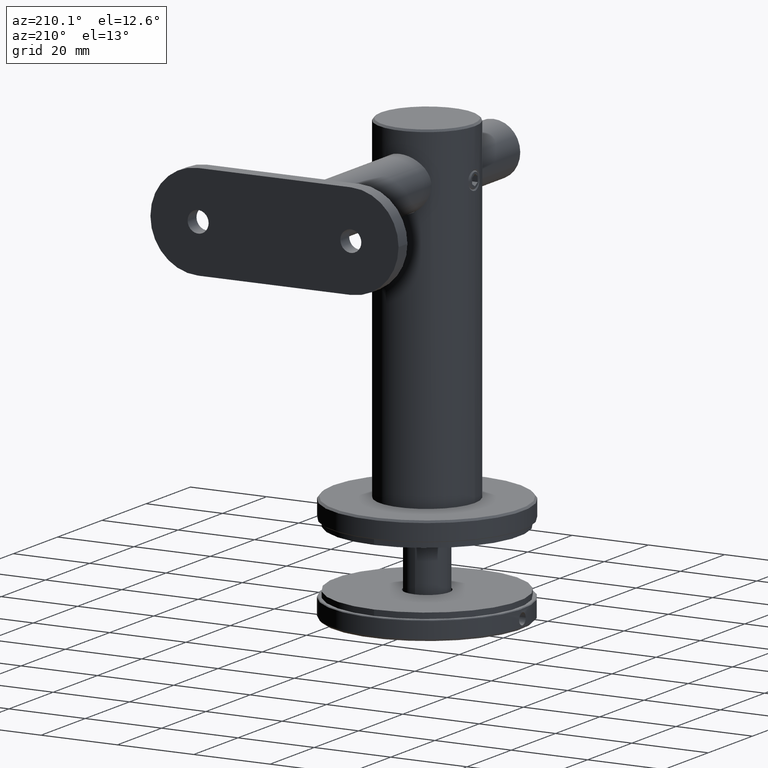
[diagram: clean part render]
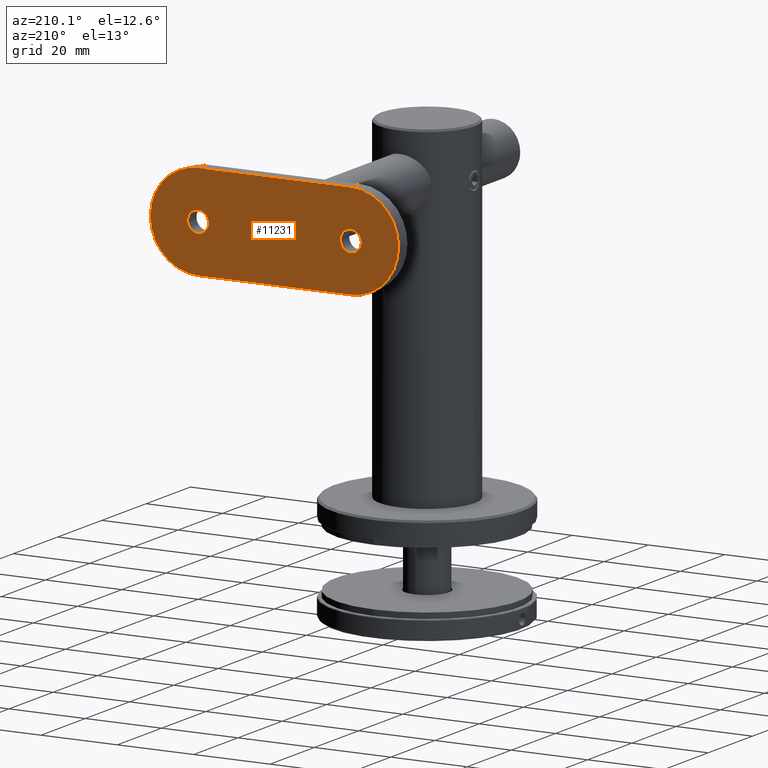
[diagram: same view with one face highlighted and labeled with its STEP entity id]
A machine part, auxiliary view. The second image highlights one B-rep face of the part: STEP entity #11231.
In plain terms, the highlighted planar face has unit normal (-0, -1, -0).
Its self-contained STEP definition (entity closure, byte-faithful):
#52 = FACE_OUTER_BOUND ( 'NONE', #7069, .T. ) ;
#147 = VERTEX_POINT ( 'NONE', #7680 ) ;
#366 = EDGE_CURVE ( 'NONE', #5533, #11909, #16301, .T. ) ;
#604 = CARTESIAN_POINT ( 'NONE',  ( 4.694321675334250400E-015, 3.999999999999996400, -20.00000000000000000 ) ) ;
#943 = LINE ( 'NONE', #15831, #9084 ) ;
#993 = AXIS2_PLACEMENT_3D ( 'NONE', #10149, #11923, #3452 ) ;
#1223 = CARTESIAN_POINT ( 'NONE',  ( 4.694321675334250400E-015, 3.999999999999996400, -17.25000000000000000 ) ) ;
#1323 = DIRECTION ( 'NONE',  ( 8.881784197001252300E-016, 0.0000000000000000000, -1.000000000000000000 ) ) ;
#1584 = CARTESIAN_POINT ( 'NONE',  ( 0.0000000000000000000, 3.999999999999996400, 20.00000000000000000 ) ) ;
#1596 = DIRECTION ( 'NONE',  ( 0.0000000000000000000, 0.0000000000000000000, 1.000000000000000000 ) ) ;
#1784 = DIRECTION ( 'NONE',  ( 0.0000000000000000000, 0.0000000000000000000, -1.000000000000000000 ) ) ;
#1800 = ORIENTED_EDGE ( 'NONE', *, *, #7670, .T. ) ;
#2168 = ORIENTED_EDGE ( 'NONE', *, *, #366, .T. ) ;
#2230 = DIRECTION ( 'NONE',  ( 0.0000000000000000000, 1.000000000000000000, 0.0000000000000000000 ) ) ;
#2417 = CARTESIAN_POINT ( 'NONE',  ( -12.50000000000000000, 3.999999999999996400, -20.00000000000000400 ) ) ;
#2842 = DIRECTION ( 'NONE',  ( -0.0000000000000000000, -0.0000000000000000000, -1.000000000000000000 ) ) ;
#3154 = DIRECTION ( 'NONE',  ( 0.0000000000000000000, 1.000000000000000000, 0.0000000000000000000 ) ) ;
#3452 = DIRECTION ( 'NONE',  ( 0.0000000000000000000, 0.0000000000000000000, -1.000000000000000000 ) ) ;
#3907 = CIRCLE ( 'NONE', #6411, 12.49999999999999600 ) ;
#4513 = CARTESIAN_POINT ( 'NONE',  ( 0.0000000000000000000, 3.999999999999996400, 20.00000000000000000 ) ) ;
#4672 = ORIENTED_EDGE ( 'NONE', *, *, #16543, .T. ) ;
#4842 = DIRECTION ( 'NONE',  ( 0.0000000000000000000, 0.0000000000000000000, -1.000000000000000000 ) ) ;
#5088 = CARTESIAN_POINT ( 'NONE',  ( 12.50000000000000000, 3.999999999999996400, -20.00000000000000400 ) ) ;
#5145 = CARTESIAN_POINT ( 'NONE',  ( 12.50000000000000000, 3.999999999999996400, 20.00000000000000000 ) ) ;
#5457 = VERTEX_POINT ( 'NONE', #2417 ) ;
#5533 = VERTEX_POINT ( 'NONE', #18704 ) ;
#5969 = ORIENTED_EDGE ( 'NONE', *, *, #12586, .F. ) ;
#6026 = VERTEX_POINT ( 'NONE', #6142 ) ;
#6098 = ORIENTED_EDGE ( 'NONE', *, *, #15721, .T. ) ;
#6142 = CARTESIAN_POINT ( 'NONE',  ( 0.0000000000000000000, 3.999999999999996400, -32.50000000000000000 ) ) ;
#6213 = AXIS2_PLACEMENT_3D ( 'NONE', #1584, #17730, #4842 ) ;
#6411 = AXIS2_PLACEMENT_3D ( 'NONE', #16371, #19560, #1784 ) ;
#6949 = DIRECTION ( 'NONE',  ( 0.0000000000000000000, -1.000000000000000000, 0.0000000000000000000 ) ) ;
#7069 = EDGE_LOOP ( 'NONE', ( #12609, #1800, #2168, #4672, #6098, #19820 ) ) ;
#7168 = CIRCLE ( 'NONE', #12428, 2.749999999999999100 ) ;
#7526 = CARTESIAN_POINT ( 'NONE',  ( 12.50000000000000000, 3.999999999999996400, 32.50000000000000000 ) ) ;
#7670 = EDGE_CURVE ( 'NONE', #12917, #5533, #9550, .T. ) ;
#7680 = CARTESIAN_POINT ( 'NONE',  ( 4.694321675334250400E-015, 3.999999999999996400, 22.75000000000000000 ) ) ;
#8516 = ORIENTED_EDGE ( 'NONE', *, *, #19517, .F. ) ;
#9084 = VECTOR ( 'NONE', #20579, 1000.000000000000000 ) ;
#9132 = EDGE_CURVE ( 'NONE', #6026, #5457, #3907, .T. ) ;
#9550 = CIRCLE ( 'NONE', #11192, 12.50000000000000000 ) ;
#9557 = AXIS2_PLACEMENT_3D ( 'NONE', #16779, #6949, #10376 ) ;
#9784 = CARTESIAN_POINT ( 'NONE',  ( 4.694321675334250400E-015, 3.999999999999996400, 20.00000000000000000 ) ) ;
#10149 = CARTESIAN_POINT ( 'NONE',  ( 0.0000000000000000000, 3.999999999999996400, -20.00000000000000400 ) ) ;
#10188 = CIRCLE ( 'NONE', #993, 12.49999999999999600 ) ;
#10332 = VERTEX_POINT ( 'NONE', #1223 ) ;
#10376 = DIRECTION ( 'NONE',  ( 0.0000000000000000000, -0.0000000000000000000, -1.000000000000000000 ) ) ;
#10901 = CIRCLE ( 'NONE', #14529, 2.749999999999999100 ) ;
#11192 = AXIS2_PLACEMENT_3D ( 'NONE', #4513, #17543, #1323 ) ;
#11231 = ADVANCED_FACE ( 'NONE', ( #14329, #18121, #52 ), #18481, .F. ) ;
#11909 = VERTEX_POINT ( 'NONE', #5145 ) ;
#11923 = DIRECTION ( 'NONE',  ( -0.0000000000000000000, 1.000000000000000000, -0.0000000000000000000 ) ) ;
#12428 = AXIS2_PLACEMENT_3D ( 'NONE', #9784, #3154, #1596 ) ;
#12586 = EDGE_CURVE ( 'NONE', #147, #147, #7168, .T. ) ;
#12609 = ORIENTED_EDGE ( 'NONE', *, *, #19327, .F. ) ;
#12917 = VERTEX_POINT ( 'NONE', #18519 ) ;
#13618 = DIRECTION ( 'NONE',  ( 0.0000000000000000000, 0.0000000000000000000, 1.000000000000000000 ) ) ;
#13864 = VERTEX_POINT ( 'NONE', #5088 ) ;
#14329 = FACE_BOUND ( 'NONE', #16384, .T. ) ;
#14529 = AXIS2_PLACEMENT_3D ( 'NONE', #604, #2230, #13618 ) ;
#15721 = EDGE_CURVE ( 'NONE', #13864, #6026, #10188, .T. ) ;
#15831 = CARTESIAN_POINT ( 'NONE',  ( -12.50000000000000000, 3.999999999999996400, 32.50000000000000000 ) ) ;
#16301 = CIRCLE ( 'NONE', #6213, 12.50000000000000000 ) ;
#16371 = CARTESIAN_POINT ( 'NONE',  ( 0.0000000000000000000, 3.999999999999996400, -20.00000000000000400 ) ) ;
#16384 = EDGE_LOOP ( 'NONE', ( #5969 ) ) ;
#16525 = VECTOR ( 'NONE', #2842, 1000.000000000000000 ) ;
#16543 = EDGE_CURVE ( 'NONE', #11909, #13864, #17541, .T. ) ;
#16779 = CARTESIAN_POINT ( 'NONE',  ( 12.50000000000000000, 3.999999999999996400, 32.50000000000000000 ) ) ;
#17541 = LINE ( 'NONE', #7526, #16525 ) ;
#17543 = DIRECTION ( 'NONE',  ( -0.0000000000000000000, 1.000000000000000000, -0.0000000000000000000 ) ) ;
#17730 = DIRECTION ( 'NONE',  ( -0.0000000000000000000, 1.000000000000000000, -0.0000000000000000000 ) ) ;
#18121 = FACE_BOUND ( 'NONE', #19445, .T. ) ;
#18481 = PLANE ( 'NONE',  #9557 ) ;
#18519 = CARTESIAN_POINT ( 'NONE',  ( -12.50000000000000000, 3.999999999999996400, 20.00000000000000000 ) ) ;
#18704 = CARTESIAN_POINT ( 'NONE',  ( 0.0000000000000000000, 3.999999999999996400, 32.50000000000000000 ) ) ;
#19327 = EDGE_CURVE ( 'NONE', #12917, #5457, #943, .T. ) ;
#19445 = EDGE_LOOP ( 'NONE', ( #8516 ) ) ;
#19517 = EDGE_CURVE ( 'NONE', #10332, #10332, #10901, .T. ) ;
#19560 = DIRECTION ( 'NONE',  ( -0.0000000000000000000, 1.000000000000000000, -0.0000000000000000000 ) ) ;
#19820 = ORIENTED_EDGE ( 'NONE', *, *, #9132, .T. ) ;
#20579 = DIRECTION ( 'NONE',  ( -0.0000000000000000000, -0.0000000000000000000, -1.000000000000000000 ) ) ;